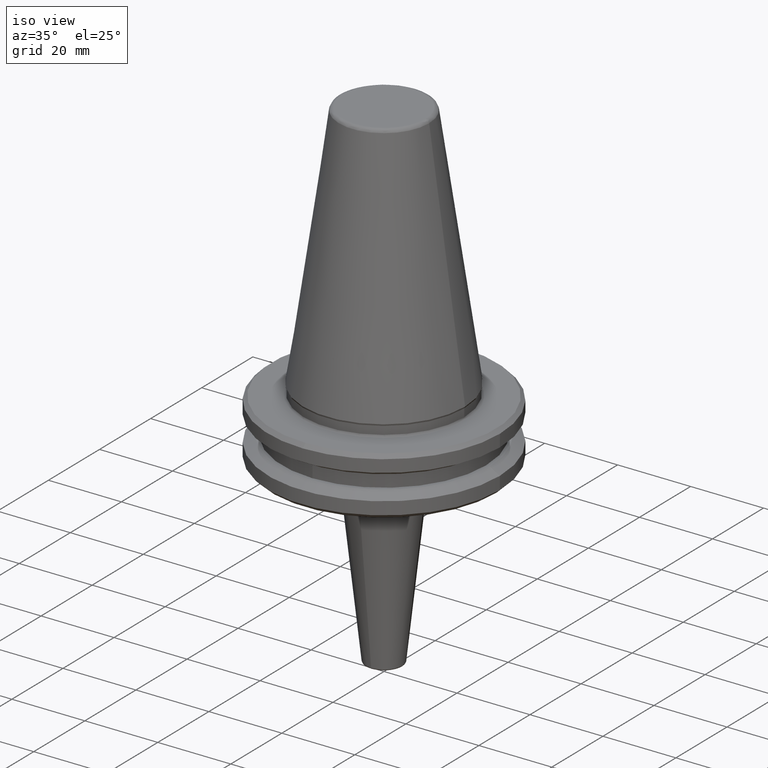
[diagram: clean part render]
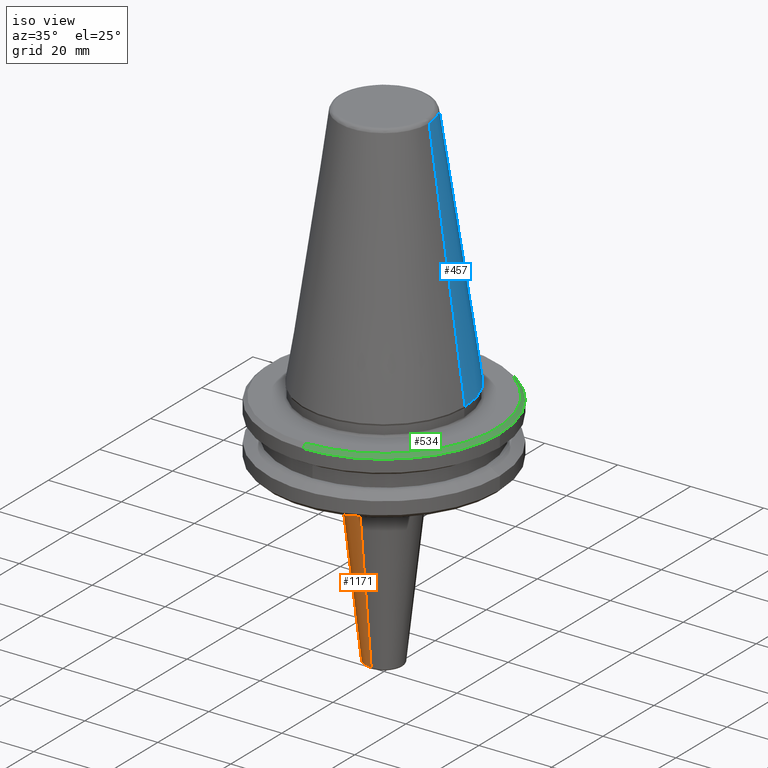
[diagram: same view with three faces highlighted in distinct colors, each labeled with its STEP entity id]
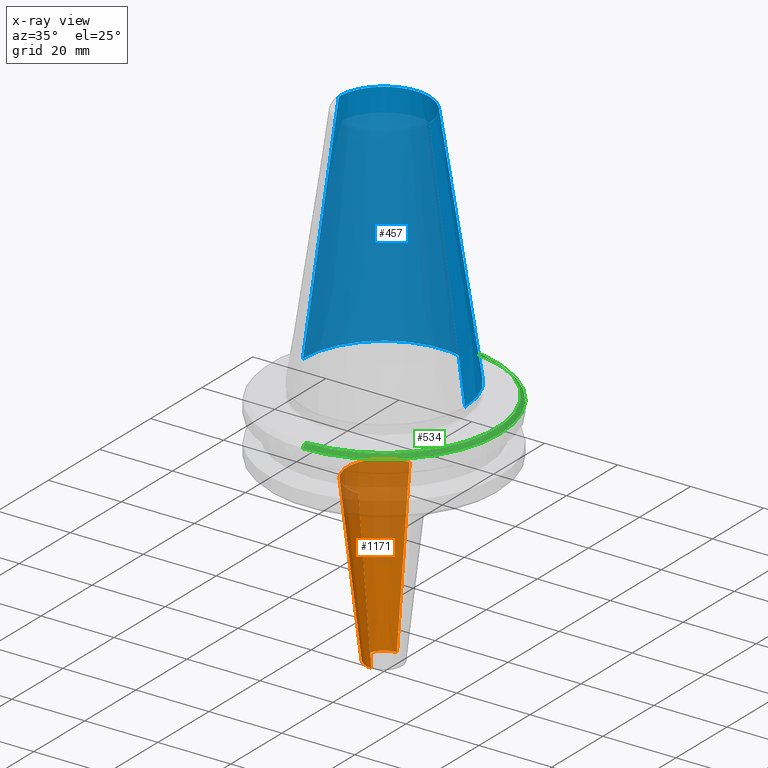
[diagram: x-ray of the same camera — body ghosted, the three highlighted faces saturated]
A machine part, iso view with three faces highlighted in distinct colors.
The next image is the same camera in x-ray (body ghosted, the three faces saturated) — at least one of them is partly hidden behind the body in this view.
Their STEP definitions:

[orange] entity #1171 — the highlighted conical surface has half-angle 6.271 deg.
#124 = DIRECTION ( 'NONE',  ( 0.0000000000000000000, -0.1092350208029769200, 0.9940159506920264200 ) ) ;
#210 = VERTEX_POINT ( 'NONE', #772 ) ;
#224 = EDGE_CURVE ( 'NONE', #330, #336, #1187, .T. ) ;
#242 = DIRECTION ( 'NONE',  ( -0.0000000000000000000, -1.387778780782526200E-016, 1.000000000000000000 ) ) ;
#245 = CARTESIAN_POINT ( 'NONE',  ( 0.0000000000000000000, -4.998173014177233500E-017, -68.73984367797450500 ) ) ;
#285 = EDGE_CURVE ( 'NONE', #336, #210, #1181, .T. ) ;
#330 = VERTEX_POINT ( 'NONE', #560 ) ;
#336 = VERTEX_POINT ( 'NONE', #1098 ) ;
#467 = VECTOR ( 'NONE', #124, 1000.000000000000100 ) ;
#471 = FACE_OUTER_BOUND ( 'NONE', #1240, .T. ) ;
#477 = DIRECTION ( 'NONE',  ( 0.0000000000000000000, 0.0000000000000000000, 1.000000000000000000 ) ) ;
#506 = ORIENTED_EDGE ( 'NONE', *, *, #647, .T. ) ;
#560 = CARTESIAN_POINT ( 'NONE',  ( -5.036054191997148900, -1.549367855812595000E-009, -68.73984367797450500 ) ) ;
#575 = CARTESIAN_POINT ( 'NONE',  ( 0.0000000000000000000, 0.0000000000000000000, -68.73984367797447700 ) ) ;
#612 = CIRCLE ( 'NONE', #1004, 10.00000000000000700 ) ;
#647 = EDGE_CURVE ( 'NONE', #1339, #330, #1300, .T. ) ;
#725 = DIRECTION ( 'NONE',  ( 0.0000000000000000000, -1.000000000000000000, 0.0000000000000000000 ) ) ;
#729 = AXIS2_PLACEMENT_3D ( 'NONE', #245, #242, #1280 ) ;
#746 = CARTESIAN_POINT ( 'NONE',  ( 6.167387646561922900E-016, 5.036054191997152400, -68.73984367797447700 ) ) ;
#750 = ORIENTED_EDGE ( 'NONE', *, *, #224, .T. ) ;
#751 = DIRECTION ( 'NONE',  ( -0.0000000000000000000, -1.387778780782526200E-016, 1.000000000000000000 ) ) ;
#754 = CARTESIAN_POINT ( 'NONE',  ( 1.224646799147354200E-015, 10.00000000000000000, -23.56897013161091800 ) ) ;
#772 = CARTESIAN_POINT ( 'NONE',  ( 0.0000000000000000000, -10.00000000000001400, -23.56897013161091800 ) ) ;
#775 = CARTESIAN_POINT ( 'NONE',  ( 0.0000000000000000000, -6.318699711847184000E-015, -23.56897013161091800 ) ) ;
#850 = AXIS2_PLACEMENT_3D ( 'NONE', #1344, #963, #1277 ) ;
#869 = DIRECTION ( 'NONE',  ( 1.337743185811600800E-017, 0.1092350208029766600, 0.9940159506920265300 ) ) ;
#871 = CARTESIAN_POINT ( 'NONE',  ( 6.167387646561919000E-016, 5.036054191997148900, -68.73984367797450500 ) ) ;
#963 = DIRECTION ( 'NONE',  ( 0.0000000000000000000, 0.0000000000000000000, 1.000000000000000000 ) ) ;
#1004 = AXIS2_PLACEMENT_3D ( 'NONE', #775, #751, #725 ) ;
#1056 = LINE ( 'NONE', #871, #1193 ) ;
#1063 = DIRECTION ( 'NONE',  ( 1.000000000000000000, 0.0000000000000000000, 0.0000000000000000000 ) ) ;
#1065 = CARTESIAN_POINT ( 'NONE',  ( 0.0000000000000000000, -5.036054191997148900, -68.73984367797450500 ) ) ;
#1078 = AXIS2_PLACEMENT_3D ( 'NONE', #575, #477, #1063 ) ;
#1098 = CARTESIAN_POINT ( 'NONE',  ( 0.0000000000000000000, -5.036054191997152400, -68.73984367797447700 ) ) ;
#1101 = ORIENTED_EDGE ( 'NONE', *, *, #285, .T. ) ;
#1171 = ADVANCED_FACE ( 'NONE', ( #471 ), #1368, .T. ) ;
#1181 = LINE ( 'NONE', #1065, #467 ) ;
#1187 = CIRCLE ( 'NONE', #850, 5.036054191997152400 ) ;
#1193 = VECTOR ( 'NONE', #869, 1000.000000000000000 ) ;
#1240 = EDGE_LOOP ( 'NONE', ( #1346, #506, #750, #1101, #1246 ) ) ;
#1246 = ORIENTED_EDGE ( 'NONE', *, *, #1315, .F. ) ;
#1277 = DIRECTION ( 'NONE',  ( 1.000000000000000000, 0.0000000000000000000, 0.0000000000000000000 ) ) ;
#1280 = DIRECTION ( 'NONE',  ( 0.0000000000000000000, -1.000000000000000000, 0.0000000000000000000 ) ) ;
#1295 = EDGE_CURVE ( 'NONE', #1339, #1302, #1056, .T. ) ;
#1300 = CIRCLE ( 'NONE', #1078, 5.036054191997152400 ) ;
#1302 = VERTEX_POINT ( 'NONE', #754 ) ;
#1315 = EDGE_CURVE ( 'NONE', #1302, #210, #612, .T. ) ;
#1339 = VERTEX_POINT ( 'NONE', #746 ) ;
#1344 = CARTESIAN_POINT ( 'NONE',  ( 0.0000000000000000000, 0.0000000000000000000, -68.73984367797447700 ) ) ;
#1346 = ORIENTED_EDGE ( 'NONE', *, *, #1295, .F. ) ;
#1368 = CONICAL_SURFACE ( 'NONE', #729, 5.036054191997148900, 0.1094534329383126500 ) ;

[blue] entity #457 — the highlighted conical surface has half-angle 8.297 deg.
#54 = VERTEX_POINT ( 'NONE', #814 ) ;
#78 = EDGE_LOOP ( 'NONE', ( #971, #311, #1134, #168 ) ) ;
#168 = ORIENTED_EDGE ( 'NONE', *, *, #479, .F. ) ;
#238 = LINE ( 'NONE', #919, #615 ) ;
#311 = ORIENTED_EDGE ( 'NONE', *, *, #338, .T. ) ;
#338 = EDGE_CURVE ( 'NONE', #54, #887, #585, .T. ) ;
#346 = DIRECTION ( 'NONE',  ( 0.1443082272694599400, 1.767266086161729200E-017, -0.9895327864918603800 ) ) ;
#410 = EDGE_CURVE ( 'NONE', #872, #54, #960, .T. ) ;
#412 = EDGE_CURVE ( 'NONE', #887, #1335, #743, .T. ) ;
#448 = CARTESIAN_POINT ( 'NONE',  ( 22.22499999999999800, 0.0000000000000000000, 0.0000000000000000000 ) ) ;
#457 = ADVANCED_FACE ( 'NONE', ( #494 ), #629, .T. ) ;
#479 = EDGE_CURVE ( 'NONE', #872, #1335, #238, .T. ) ;
#491 = CARTESIAN_POINT ( 'NONE',  ( -12.37469537590595100, -5.555843992514513000E-010, 67.54430822698967100 ) ) ;
#494 = FACE_OUTER_BOUND ( 'NONE', #78, .T. ) ;
#520 = VECTOR ( 'NONE', #346, 1000.000000000000100 ) ;
#585 = LINE ( 'NONE', #679, #520 ) ;
#615 = VECTOR ( 'NONE', #641, 1000.000000000000100 ) ;
#629 = CONICAL_SURFACE ( 'NONE', #972, 22.22499999999999400, 0.1448138465495947800 ) ;
#641 = DIRECTION ( 'NONE',  ( -0.1443082272694599400, 0.0000000000000000000, -0.9895327864918603800 ) ) ;
#679 = CARTESIAN_POINT ( 'NONE',  ( 22.22499999999999400, 2.721777511104992100E-015, 0.0000000000000000000 ) ) ;
#688 = DIRECTION ( 'NONE',  ( 0.0000000000000000000, 0.0000000000000000000, -1.000000000000000000 ) ) ;
#739 = CARTESIAN_POINT ( 'NONE',  ( -22.22499999999999800, 2.721777511104992500E-015, 0.0000000000000000000 ) ) ;
#743 = CIRCLE ( 'NONE', #987, 22.22499999999999400 ) ;
#767 = DIRECTION ( 'NONE',  ( 0.0000000000000000000, 0.0000000000000000000, -1.000000000000000000 ) ) ;
#814 = CARTESIAN_POINT ( 'NONE',  ( 12.37469537590452100, -2.855354478374084000E-009, 67.54430822699950500 ) ) ;
#872 = VERTEX_POINT ( 'NONE', #491 ) ;
#887 = VERTEX_POINT ( 'NONE', #448 ) ;
#919 = CARTESIAN_POINT ( 'NONE',  ( -22.22499999999999400, 0.0000000000000000000, 0.0000000000000000000 ) ) ;
#921 = CARTESIAN_POINT ( 'NONE',  ( 0.0000000000000000000, 0.0000000000000000000, 67.54430822699998800 ) ) ;
#922 = CARTESIAN_POINT ( 'NONE',  ( 0.0000000000000000000, 0.0000000000000000000, 0.0000000000000000000 ) ) ;
#923 = AXIS2_PLACEMENT_3D ( 'NONE', #921, #767, #925 ) ;
#925 = DIRECTION ( 'NONE',  ( -1.000000000000000000, 0.0000000000000000000, 0.0000000000000000000 ) ) ;
#960 = CIRCLE ( 'NONE', #923, 12.37469537600000400 ) ;
#971 = ORIENTED_EDGE ( 'NONE', *, *, #410, .T. ) ;
#972 = AXIS2_PLACEMENT_3D ( 'NONE', #922, #688, #974 ) ;
#973 = DIRECTION ( 'NONE',  ( -0.0000000000000000000, -0.0000000000000000000, 1.000000000000000000 ) ) ;
#974 = DIRECTION ( 'NONE',  ( -1.000000000000000000, 0.0000000000000000000, 0.0000000000000000000 ) ) ;
#987 = AXIS2_PLACEMENT_3D ( 'NONE', #993, #973, #995 ) ;
#993 = CARTESIAN_POINT ( 'NONE',  ( 0.0000000000000000000, 0.0000000000000000000, 0.0000000000000000000 ) ) ;
#995 = DIRECTION ( 'NONE',  ( -1.000000000000000000, 0.0000000000000000000, 0.0000000000000000000 ) ) ;
#1134 = ORIENTED_EDGE ( 'NONE', *, *, #412, .T. ) ;
#1335 = VERTEX_POINT ( 'NONE', #739 ) ;

[green] entity #534 — the highlighted conical surface has half-angle 45 deg.
#1 = EDGE_CURVE ( 'NONE', #31, #403, #255, .T. ) ;
#2 = ORIENTED_EDGE ( 'NONE', *, *, #969, .F. ) ;
#31 = VERTEX_POINT ( 'NONE', #458 ) ;
#52 = VERTEX_POINT ( 'NONE', #983 ) ;
#94 = LINE ( 'NONE', #999, #1097 ) ;
#172 = ORIENTED_EDGE ( 'NONE', *, *, #345, .T. ) ;
#194 = ORIENTED_EDGE ( 'NONE', *, *, #1, .F. ) ;
#222 = VERTEX_POINT ( 'NONE', #643 ) ;
#243 = EDGE_CURVE ( 'NONE', #222, #1019, #1144, .T. ) ;
#255 = CIRCLE ( 'NONE', #1303, 30.74999999999994300 ) ;
#258 = ORIENTED_EDGE ( 'NONE', *, *, #243, .T. ) ;
#271 = DIRECTION ( 'NONE',  ( -0.0000000000000000000, -0.0000000000000000000, 1.000000000000000000 ) ) ;
#305 = CARTESIAN_POINT ( 'NONE',  ( 0.0000000000000000000, 0.0000000000000000000, -3.200000000000036100 ) ) ;
#345 = EDGE_CURVE ( 'NONE', #52, #222, #937, .T. ) ;
#367 = AXIS2_PLACEMENT_3D ( 'NONE', #891, #656, #551 ) ;
#403 = VERTEX_POINT ( 'NONE', #703 ) ;
#419 = DIRECTION ( 'NONE',  ( 0.0000000000000000000, 0.7071067811865471300, -0.7071067811865479100 ) ) ;
#458 = CARTESIAN_POINT ( 'NONE',  ( 3.827021247335477300E-015, -30.74999999999994300, -3.200000000000036100 ) ) ;
#490 = EDGE_CURVE ( 'NONE', #31, #52, #94, .T. ) ;
#534 = ADVANCED_FACE ( 'NONE', ( #823 ), #904, .T. ) ;
#551 = DIRECTION ( 'NONE',  ( 1.000000000000000000, 0.0000000000000000000, 0.0000000000000000000 ) ) ;
#643 = CARTESIAN_POINT ( 'NONE',  ( 31.74999999999994300, 0.0000000000000000000, -4.200000000000036600 ) ) ;
#656 = DIRECTION ( 'NONE',  ( -0.0000000000000000000, -0.0000000000000000000, 1.000000000000000000 ) ) ;
#672 = CARTESIAN_POINT ( 'NONE',  ( 0.0000000000000000000, 5.945690617862298400E-033, -4.082842712422809100 ) ) ;
#687 = CARTESIAN_POINT ( 'NONE',  ( 0.0000000000000000000, 31.63284271242281100, -4.082842712422808200 ) ) ;
#703 = CARTESIAN_POINT ( 'NONE',  ( 0.0000000000000000000, 30.74999999999994300, -3.200000000000036100 ) ) ;
#723 = CARTESIAN_POINT ( 'NONE',  ( 0.0000000000000000000, 31.75000000000003600, -4.200000000000036600 ) ) ;
#817 = EDGE_LOOP ( 'NONE', ( #194, #868, #172, #258, #2 ) ) ;
#823 = FACE_OUTER_BOUND ( 'NONE', #817, .T. ) ;
#868 = ORIENTED_EDGE ( 'NONE', *, *, #490, .T. ) ;
#891 = CARTESIAN_POINT ( 'NONE',  ( 0.0000000000000000000, 0.0000000000000000000, -4.200000000000036600 ) ) ;
#904 = CONICAL_SURFACE ( 'NONE', #1262, 31.63284271242281100, 0.7853981633974477200 ) ;
#907 = VECTOR ( 'NONE', #419, 1000.000000000000000 ) ;
#916 = DIRECTION ( 'NONE',  ( 8.659560562354927900E-017, -0.7071067811865471300, -0.7071067811865479100 ) ) ;
#926 = LINE ( 'NONE', #687, #907 ) ;
#937 = CIRCLE ( 'NONE', #367, 31.74999999999994300 ) ;
#969 = EDGE_CURVE ( 'NONE', #403, #1019, #926, .T. ) ;
#983 = CARTESIAN_POINT ( 'NONE',  ( 3.888253587292851200E-015, -31.75000000000003600, -4.200000000000036600 ) ) ;
#999 = CARTESIAN_POINT ( 'NONE',  ( 3.873905957570026600E-015, -31.63284271242281100, -4.082842712422809900 ) ) ;
#1002 = DIRECTION ( 'NONE',  ( 0.0000000000000000000, 1.000000000000000000, 2.741965829229044800E-017 ) ) ;
#1019 = VERTEX_POINT ( 'NONE', #723 ) ;
#1054 = DIRECTION ( 'NONE',  ( 0.0000000000000000000, 1.370982914614522700E-017, -1.000000000000000000 ) ) ;
#1097 = VECTOR ( 'NONE', #916, 1000.000000000000000 ) ;
#1142 = DIRECTION ( 'NONE',  ( 1.000000000000000000, 0.0000000000000000000, 0.0000000000000000000 ) ) ;
#1144 = CIRCLE ( 'NONE', #1236, 31.74999999999994300 ) ;
#1236 = AXIS2_PLACEMENT_3D ( 'NONE', #1292, #1293, #1296 ) ;
#1262 = AXIS2_PLACEMENT_3D ( 'NONE', #672, #1054, #1002 ) ;
#1292 = CARTESIAN_POINT ( 'NONE',  ( 0.0000000000000000000, 0.0000000000000000000, -4.200000000000036600 ) ) ;
#1293 = DIRECTION ( 'NONE',  ( -0.0000000000000000000, -0.0000000000000000000, 1.000000000000000000 ) ) ;
#1296 = DIRECTION ( 'NONE',  ( 1.000000000000000000, 0.0000000000000000000, 0.0000000000000000000 ) ) ;
#1303 = AXIS2_PLACEMENT_3D ( 'NONE', #305, #271, #1142 ) ;